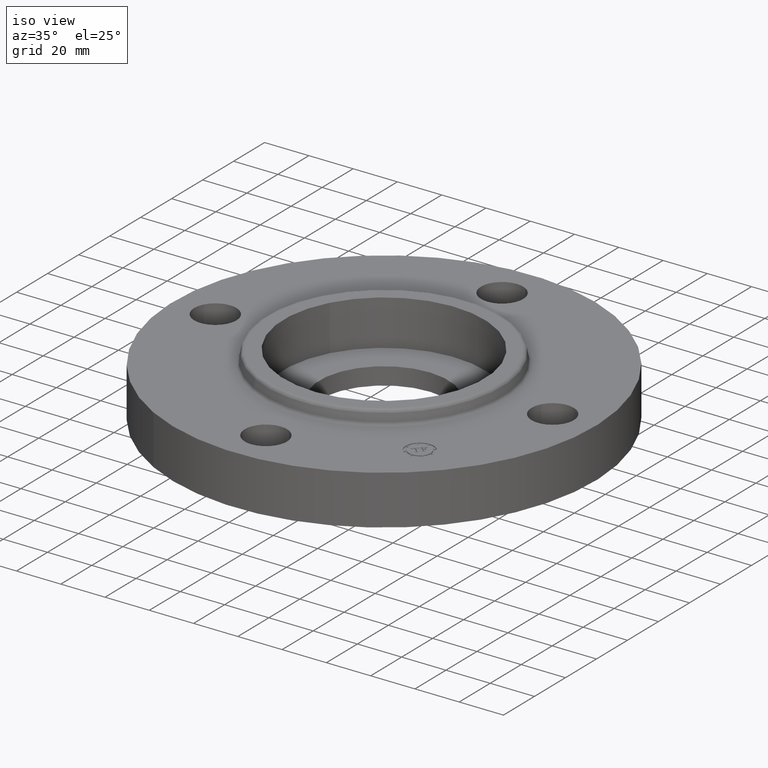
[diagram: clean part render]
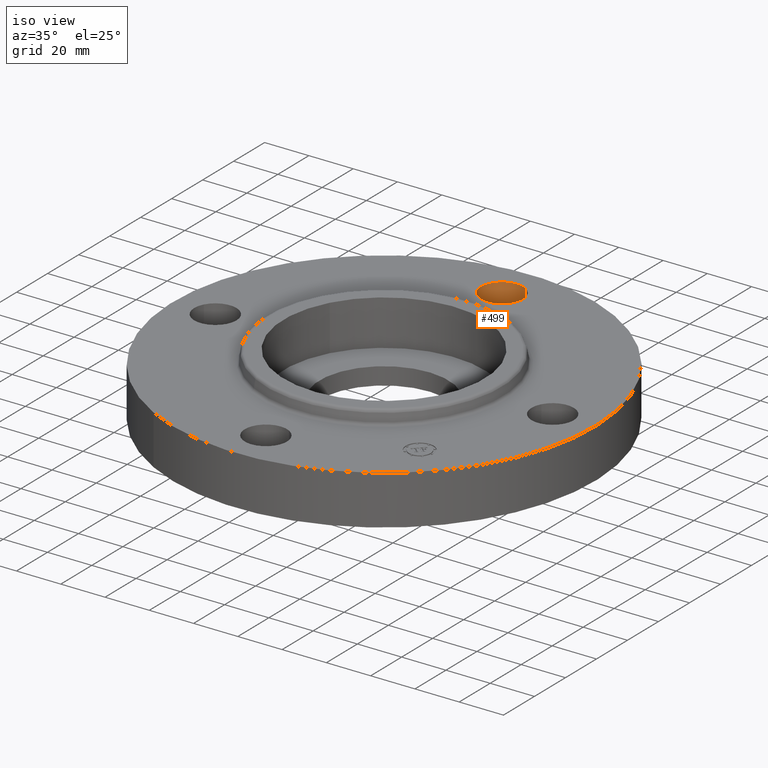
[diagram: same view with one face highlighted and labeled with its STEP entity id]
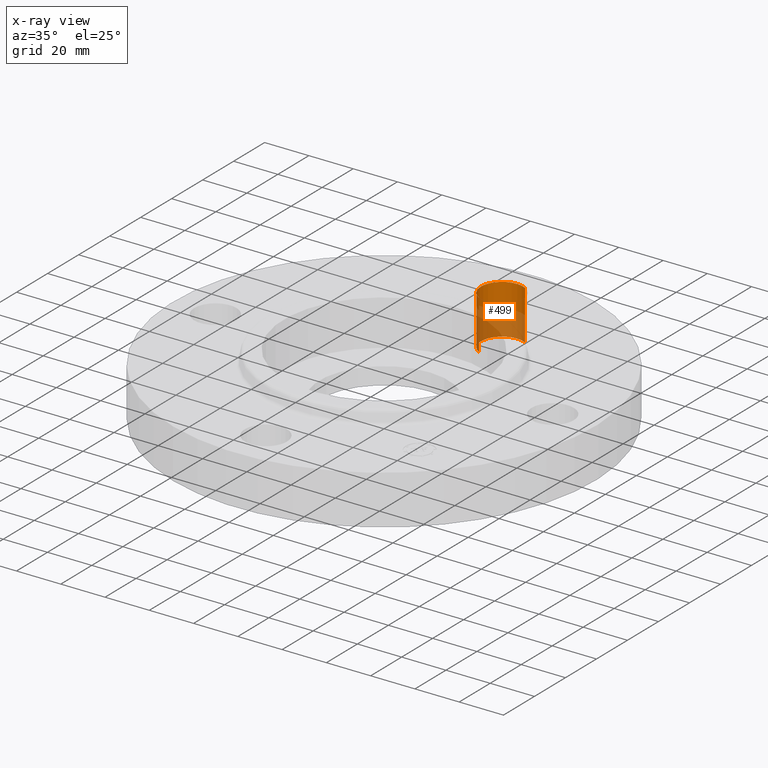
[diagram: x-ray of the same camera — body ghosted, the highlighted face saturated]
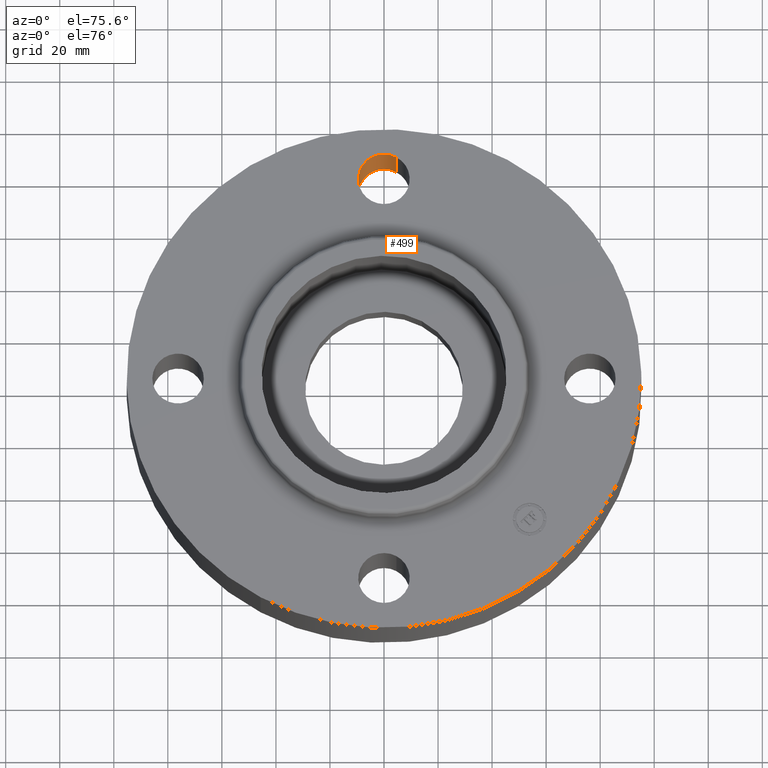
[diagram: same view with one face highlighted and labeled with its STEP entity id]
A machine part, iso view. The second image highlights one B-rep face of the part: STEP entity #499.
The next image is the same camera in x-ray: the body ghosted, the highlighted face saturated — about 53% of this face is hidden behind the body in this view.
A second angle (auxiliary view) of the same face is appended — the face is thin or edge-on in the first view.
In plain terms, the highlighted cylindrical surface (edge-blend (fillet) strip) has radius 9.525 mm, axis along (0, 0, -1).
Its self-contained STEP definition (entity closure, byte-faithful):
#226=AXIS2_PLACEMENT_3D('Circle Axis2P3D',#224,#225,$) ;
#460=AXIS2_PLACEMENT_3D('Cylinder Axis2P3D',#457,#458,#459) ;
#490=AXIS2_PLACEMENT_3D('Circle Axis2P3D',#488,#489,$) ;
#224=CARTESIAN_POINT('Axis2P3D Location',(-6.2941777774E-016,3.00000000001,0.)) ;
#228=CARTESIAN_POINT('Vertex',(-0.179784576977,2.6709065393,0.)) ;
#230=CARTESIAN_POINT('Vertex',(0.179784576977,3.32909346072,0.)) ;
#457=CARTESIAN_POINT('Axis2P3D Location',(-5.51091059619E-016,3.00000000001,0.87606299213)) ;
#462=CARTESIAN_POINT('Line Origine',(0.179784576977,3.32909346072,0.440000000002)) ;
#466=CARTESIAN_POINT('Vertex',(0.179784576977,3.32909346072,0.880000000004)) ;
#469=CARTESIAN_POINT('Line Origine',(-0.179784576977,2.6709065393,0.440000000002)) ;
#473=CARTESIAN_POINT('Vertex',(-0.179784576977,2.6709065393,0.880000000004)) ;
#488=CARTESIAN_POINT('Axis2P3D Location',(-5.51091059619E-016,3.00000000001,0.880000000004)) ;
#225=DIRECTION('Axis2P3D Direction',(0.,0.,-0.0393700787402)) ;
#458=DIRECTION('Axis2P3D Direction',(0.,0.,-0.0393700787402)) ;
#459=DIRECTION('Axis2P3D XDirection',(-0.0188750212049,-0.0345504945626,-0.)) ;
#463=DIRECTION('Vector Direction',(0.,0.,-0.0393700787402)) ;
#470=DIRECTION('Vector Direction',(0.,0.,-0.0393700787402)) ;
#489=DIRECTION('Axis2P3D Direction',(0.,0.,-0.0393700787402)) ;
#464=VECTOR('Line Direction',#463,0.0393700787402) ;
#471=VECTOR('Line Direction',#470,0.0393700787402) ;
#494=ORIENTED_EDGE('',*,*,#475,.F.) ;
#495=ORIENTED_EDGE('',*,*,#232,.T.) ;
#496=ORIENTED_EDGE('',*,*,#468,.T.) ;
#497=ORIENTED_EDGE('',*,*,#492,.F.) ;
#499=ADVANCED_FACE('PartBody',(#498),#461,.F.) ;
#227=CIRCLE('generated circle',#226,0.375000000002) ;
#491=CIRCLE('generated circle',#490,0.375000000002) ;
#461=CYLINDRICAL_SURFACE('generated cylinder',#460,0.375000000002) ;
#232=EDGE_CURVE('',#229,#231,#227,.T.) ;
#468=EDGE_CURVE('',#231,#467,#465,.F.) ;
#475=EDGE_CURVE('',#229,#474,#472,.F.) ;
#492=EDGE_CURVE('',#474,#467,#491,.T.) ;
#493=EDGE_LOOP('',(#494,#495,#496,#497)) ;
#498=FACE_OUTER_BOUND('',#493,.T.) ;
#465=LINE('Line',#462,#464) ;
#472=LINE('Line',#469,#471) ;
#229=VERTEX_POINT('',#228) ;
#231=VERTEX_POINT('',#230) ;
#467=VERTEX_POINT('',#466) ;
#474=VERTEX_POINT('',#473) ;